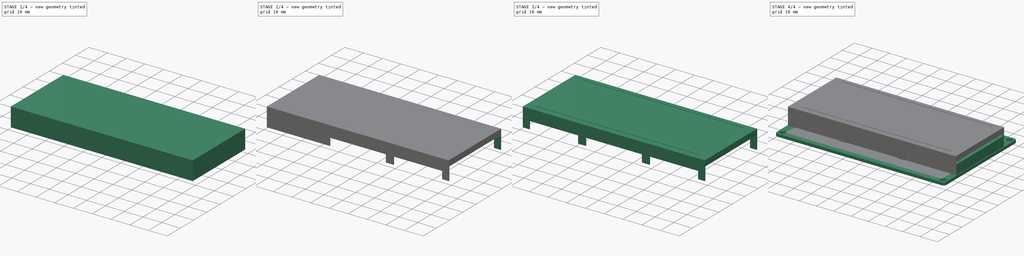
[diagram: build sequence overview — one tinted view per stage of 4, left to right]
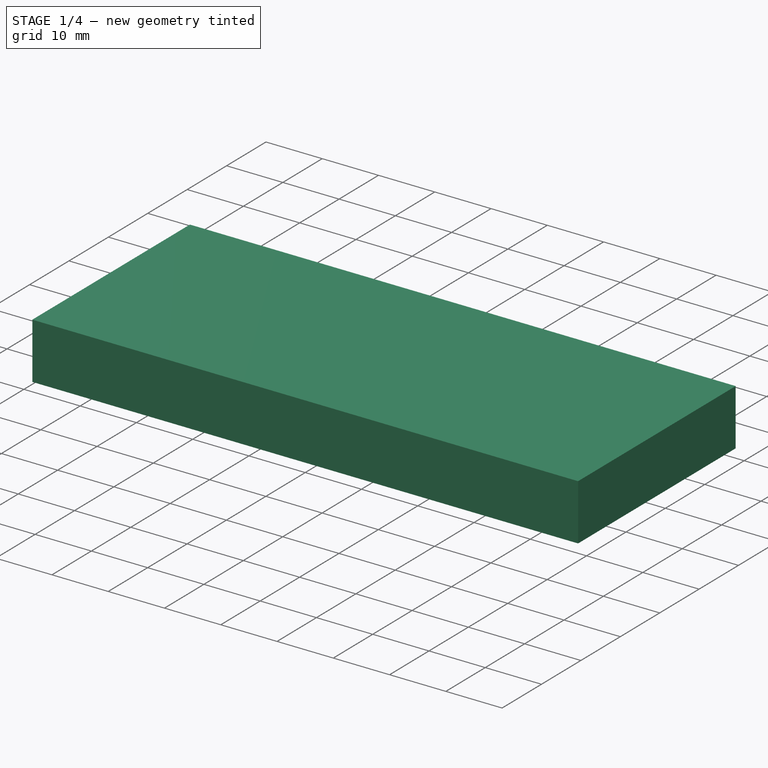
[diagram: stage 1 of 4 — iso view after this stage's code; geometry added in this stage tinted green]
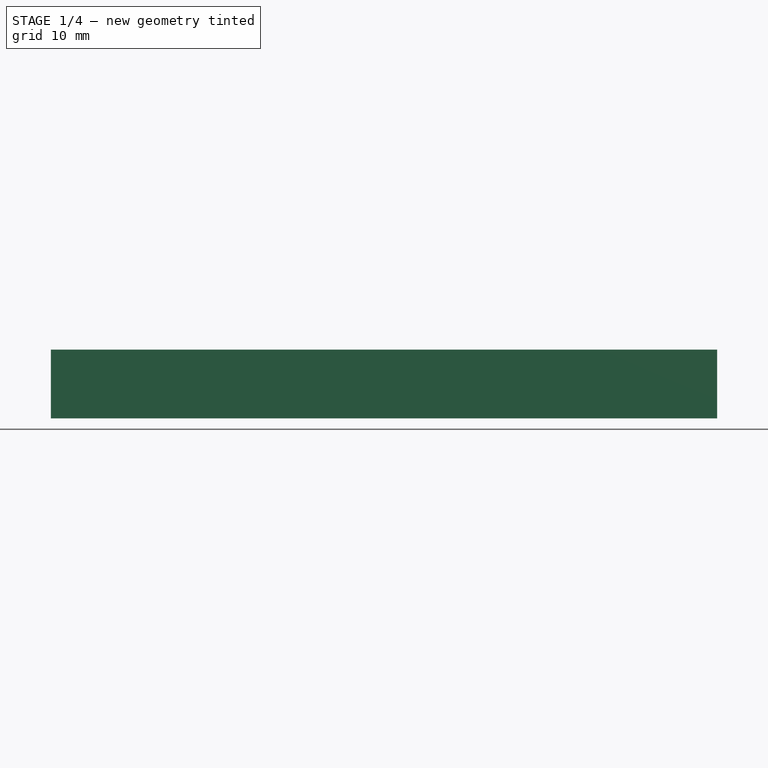
[diagram: stage 1 of 4 — front view after this stage's code; geometry added in this stage tinted green]
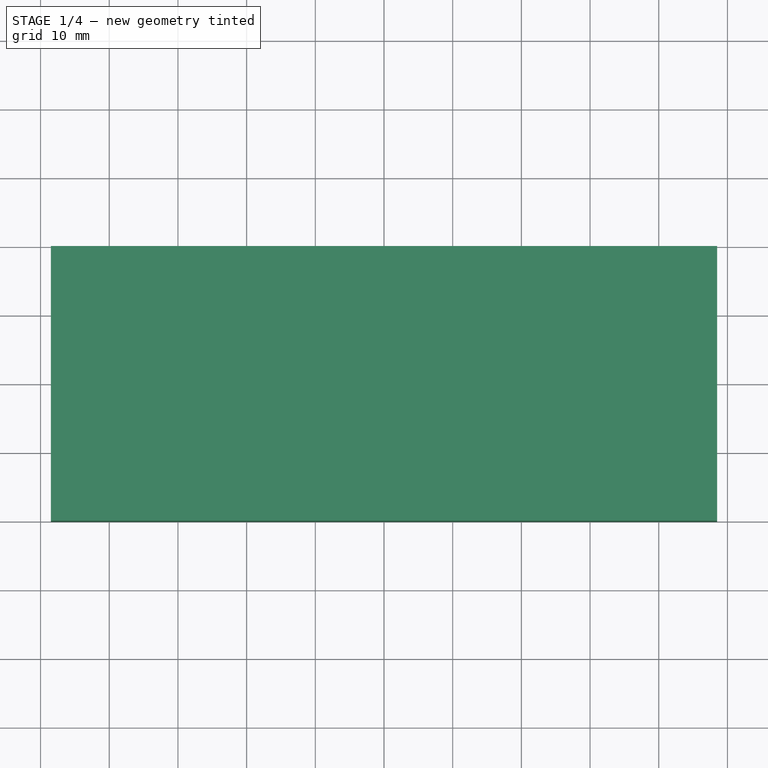
[diagram: stage 1 of 4 — top view after this stage's code; geometry added in this stage tinted green]
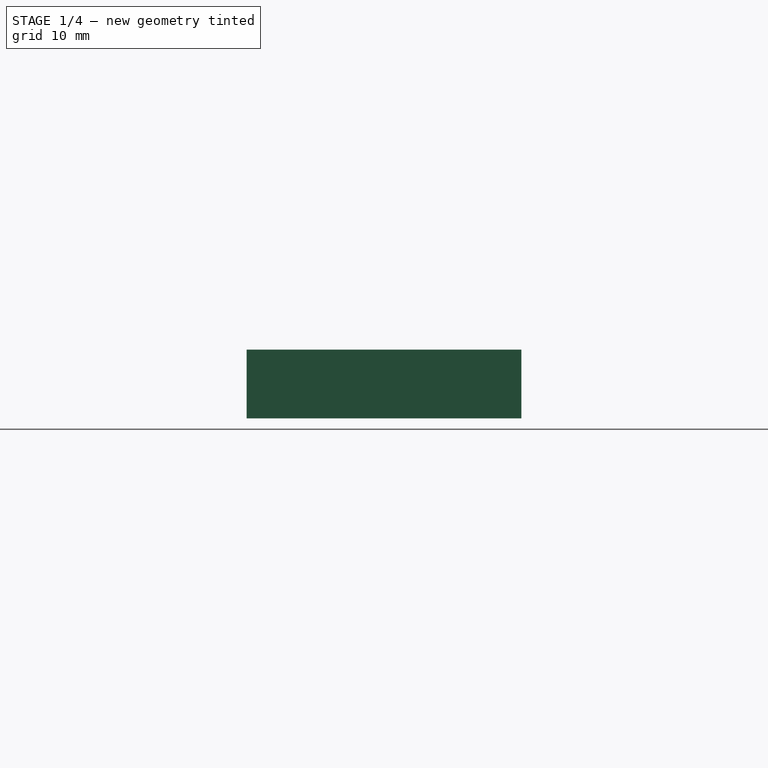
[diagram: stage 1 of 4 — right view after this stage's code; geometry added in this stage tinted green]
FCSTD DOCUMENT  (FreeCAD 1.0R39319 (Git))
Label: Display-LCD20x4
License: All rights reserved
LicenseURL: http://en.wikipedia.org/wiki/All_rights_reserved
objects: Sketcher::SketchObject×5, PartDesign::Pad×4, PartDesign::Body×4, PartDesign::SubtractiveBox×4, PartDesign::Fillet×2, PartDesign::Pocket×1, PartDesign::Mirrored×1
note: 49 computed .brp shape members not serialized (recipe doc carries the construction recipe); baked Part::Feature solids carry a one-line shape summary decoded from their .brp

FEATURE [PartDesign::Body] Body001
  AllowCompound = false
  Group = -> [Sketch002,Pad001]
  Origin = -> Origin001
  Tip = -> Pad001
FEATURE [Sketcher::SketchObject] Sketch003
  ArcFitTolerance = 0
  AttachmentSupport = -> [XY_Plane002]
  FullyConstrained = true
  MakeInternals = false
  MapMode = 5
  sketch-geometry (4):
    g0: LineSegment StartX=-48.5 StartY=20 StartZ=0 EndX=48.5 EndY=20 EndZ=0
    g1: LineSegment StartX=48.5 StartY=20 StartZ=0 EndX=48.5 EndY=-20 EndZ=0
    g2: LineSegment StartX=48.5 StartY=-20 StartZ=0 EndX=-48.5 EndY=-20 EndZ=0
    g3: LineSegment StartX=-48.5 StartY=-20 StartZ=0 EndX=-48.5 EndY=20 EndZ=0
  constraints (10):
    c: Coincident(g0,g1)
    c: Coincident(g1,g2)
    c: Coincident(g2,g3)
    c: Coincident(g3,g0)
    c: Horizontal(g2)
    c: Vertical(g3)
    c: DistanceY(g1,g1) = 40
    c: Symmetric(g0,g1,g-1)
    c: Symmetric(g0,g0,g-2)
    c: DistanceX(g2,g2) = 97
FEATURE [PartDesign::Pad] Pad002
  AllowMultiFace = false
  Direction = (0,0,1)
  Length = 10
  Length2 = 100
  Profile = -> Sketch003
  Suppressed = false
  Type = 0
FEATURE [PartDesign::Body] Body002
  AllowCompound = false
  Group = -> [Sketch003,Pad002,Box,Box001,Box002,Box003,Sketch004,Pocket,Mirrored]
  Origin = -> Origin002
  Tip = -> Mirrored
FEATURE [Sketcher::SketchObject] Sketch005
  ArcFitTolerance = 0
  AttachmentSupport = -> [XY_Plane003]
  FullyConstrained = true
  MakeInternals = false
  MapMode = 5
  sketch-geometry (4):
    g0: LineSegment StartX=-40 StartY=13 StartZ=0 EndX=40 EndY=13 EndZ=0
    g1: LineSegment StartX=40 StartY=13 StartZ=0 EndX=40 EndY=-13 EndZ=0
    g2: LineSegment StartX=40 StartY=-13 StartZ=0 EndX=-40 EndY=-13 EndZ=0
    g3: LineSegment StartX=-40 StartY=-13 StartZ=0 EndX=-40 EndY=13 EndZ=0
  constraints (10):
    c: Coincident(g0,g1)
    c: Coincident(g1,g2)
    c: Coincident(g2,g3)
    c: Coincident(g3,g0)
    c: Horizontal(g2)
    c: Vertical(g1)
    c: Symmetric(g0,g0,g-2)
    c: Symmetric(g0,g2,g-1)
    c: DistanceY(g1,g1) = 26
    c: DistanceX(g0,g0) = 80
FEATURE [PartDesign::Pad] Pad003
  AllowMultiFace = false
  Direction = (0,0,1)
  Length = 1
  Length2 = 100
  Profile = -> Sketch005
  Suppressed = false
  Type = 0
FEATURE [PartDesign::Fillet] Fillet001
  Base = -> Pad003 [Edge2,Edge5,Edge1,Edge8]
  BaseFeature = -> Pad003
  Radius = 2
  Refine = true
  SupportTransform = false
  Suppressed = false
  UseAllEdges = false
FEATURE [PartDesign::Body] Body003
  AllowCompound = false
  Group = -> [Sketch005,Pad003,Fillet001]
  Origin = -> Origin003
  Placement = pos=(0,0,9.5) rot=(0,0,1;0rad)
  Tip = -> Fillet001
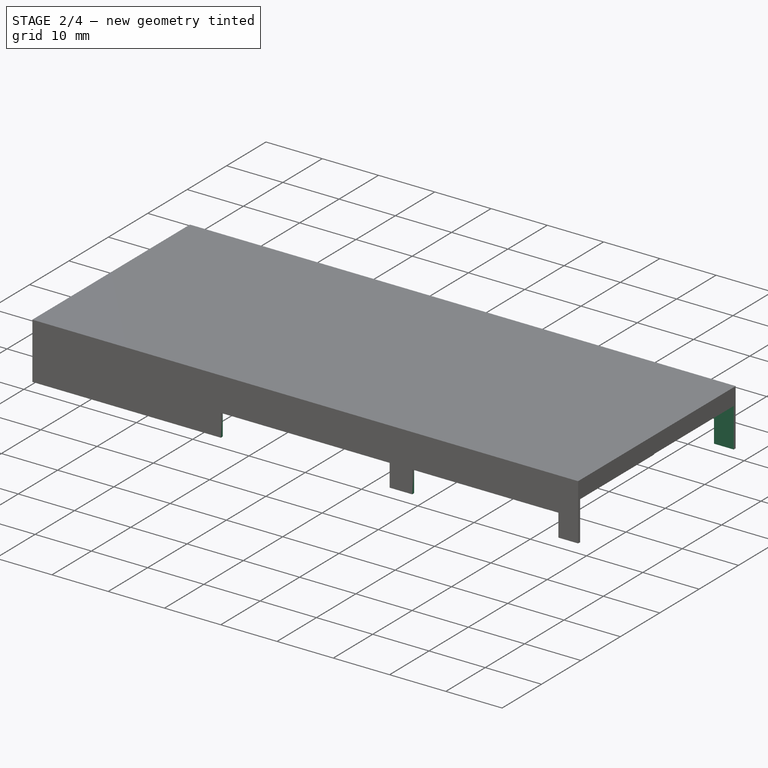
[diagram: stage 2 of 4 — iso view after this stage's code; geometry added in this stage tinted green]
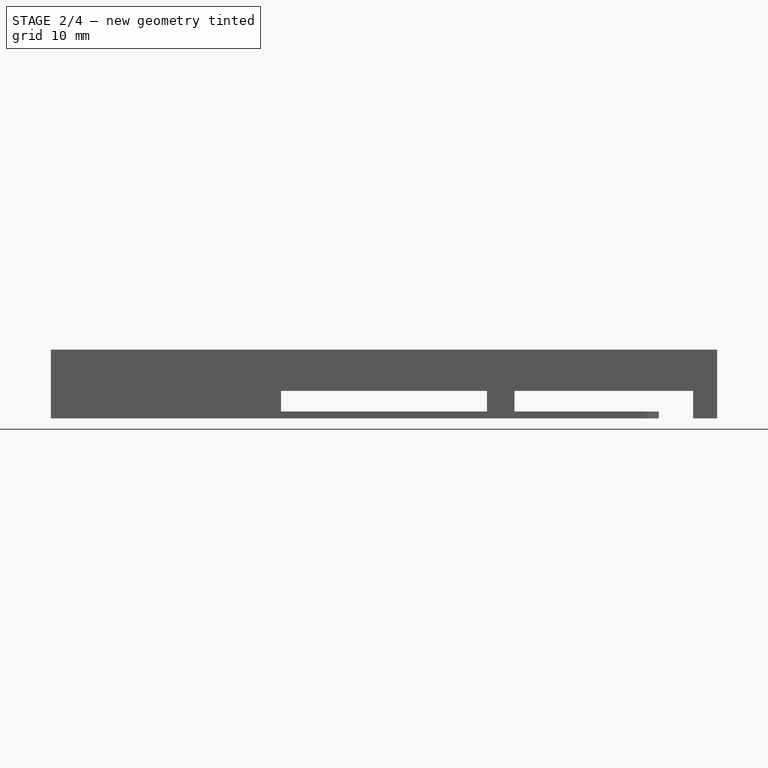
[diagram: stage 2 of 4 — front view after this stage's code; geometry added in this stage tinted green]
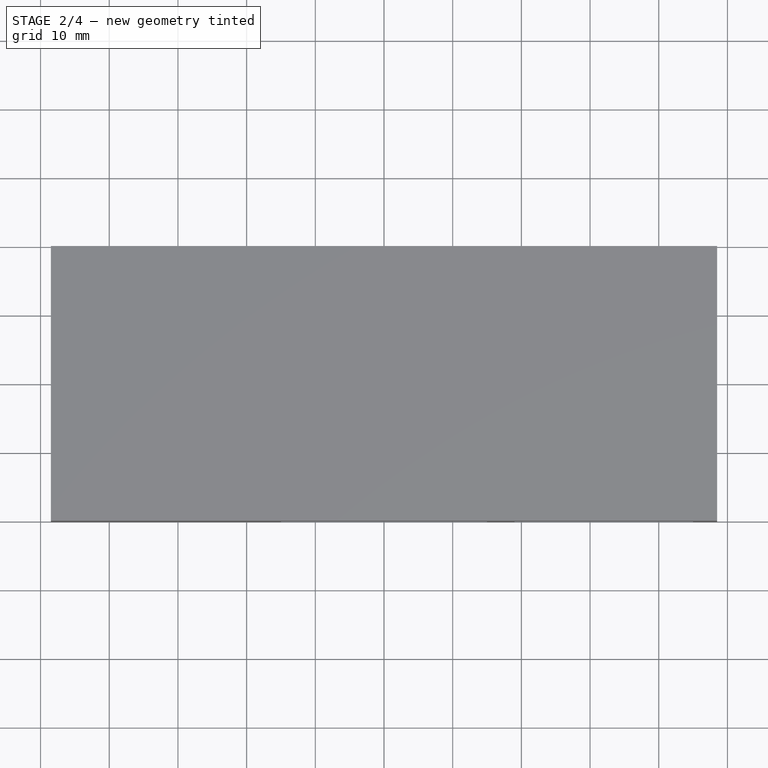
[diagram: stage 2 of 4 — top view after this stage's code; geometry added in this stage tinted green]
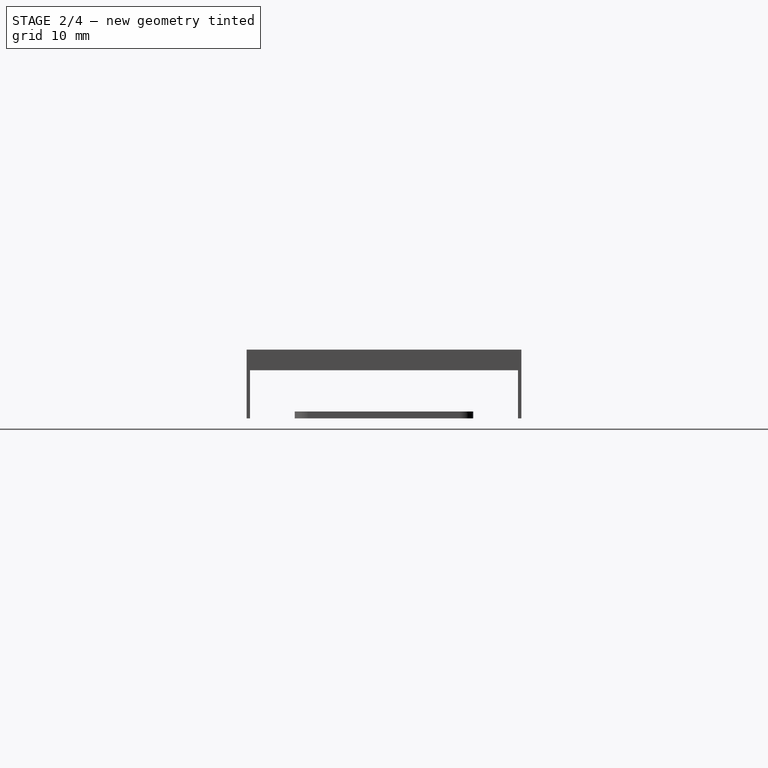
[diagram: stage 2 of 4 — right view after this stage's code; geometry added in this stage tinted green]
FEATURE [PartDesign::SubtractiveBox] Box
  AttacherType = Attacher::AttachEngine3D
  AttachmentOffset = pos=(-19.5,0,-50) rot=(0,0,1;0rad)
  AttachmentSupport = -> [YZ_Plane002]
  BaseFeature = -> Pad002
  Height = 100
  Length = 39
  MapMode = 5
  Placement = pos=(-50,-19.5,0) rot=(0.57735,0.57735,0.57735;2.0944rad)
  Suppressed = false
  Width = 7
FEATURE [PartDesign::SubtractiveBox] Box001
  AttacherType = Attacher::AttachEngine3D
  AttachmentOffset = pos=(19,0,-22) rot=(0,0,1;0rad)
  AttachmentSupport = -> [XZ_Plane002]
  BaseFeature = -> Box
  Height = 44
  Length = 26
  MapMode = 5
  Placement = pos=(19,22,-4.9e-15) rot=(1,0,0;1.5708rad)
  Suppressed = false
  Width = 4
FEATURE [PartDesign::SubtractiveBox] Box002
  AttacherType = Attacher::AttachEngine3D
  AttachmentOffset = pos=(-15,0,-22) rot=(0,0,1;0rad)
  AttachmentSupport = -> [XZ_Plane002]
  BaseFeature = -> Box001
  Height = 44
  Length = 30
  MapMode = 5
  Placement = pos=(-15,22,-4.9e-15) rot=(1,0,0;1.5708rad)
  Suppressed = false
  Width = 4
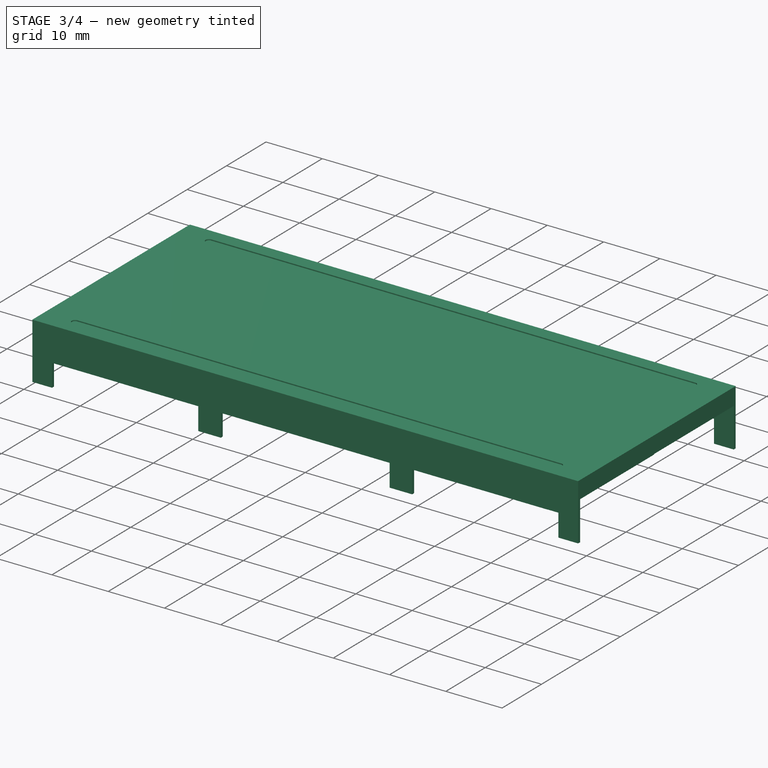
[diagram: stage 3 of 4 — iso view after this stage's code; geometry added in this stage tinted green]
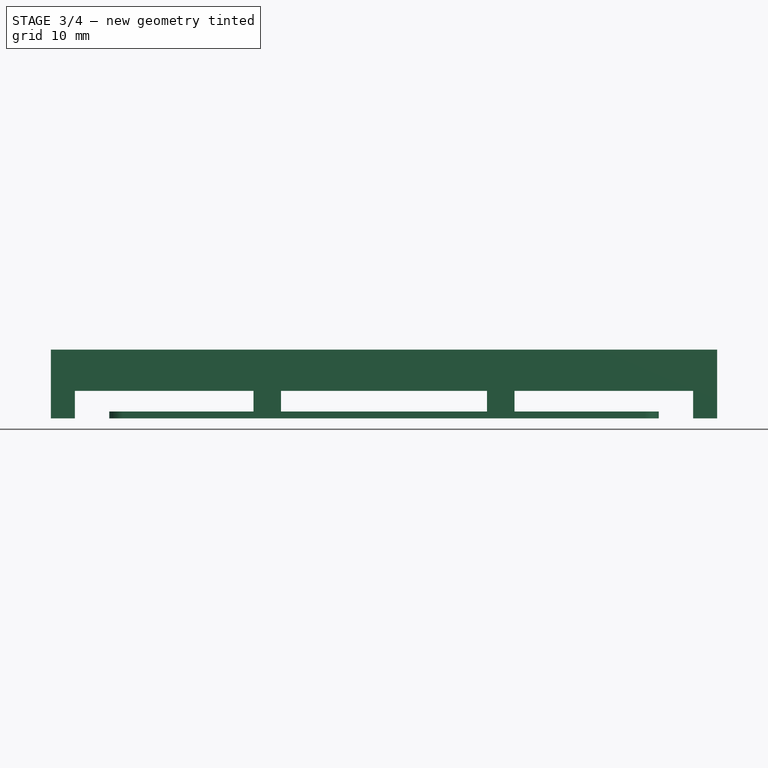
[diagram: stage 3 of 4 — front view after this stage's code; geometry added in this stage tinted green]
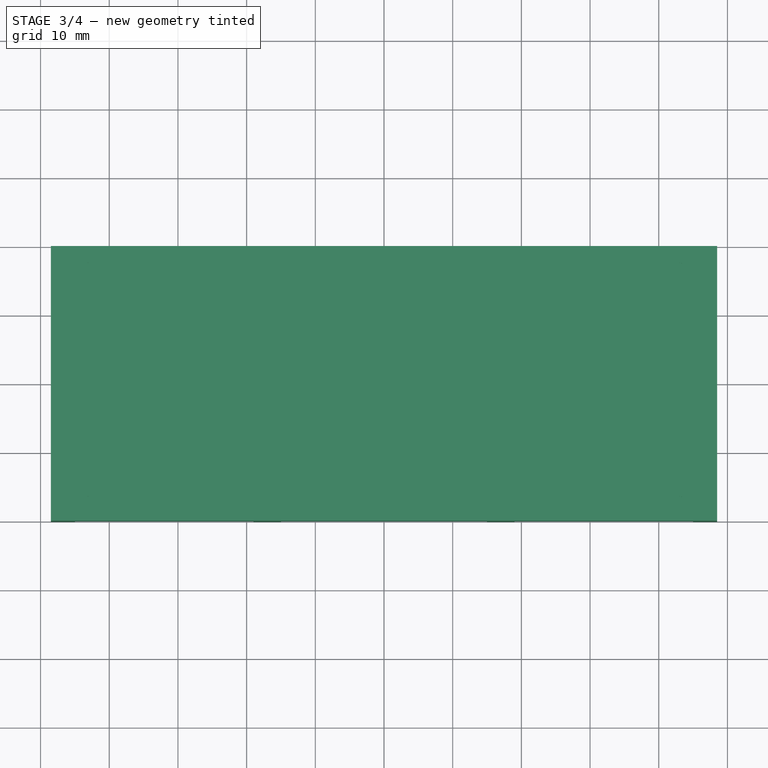
[diagram: stage 3 of 4 — top view after this stage's code; geometry added in this stage tinted green]
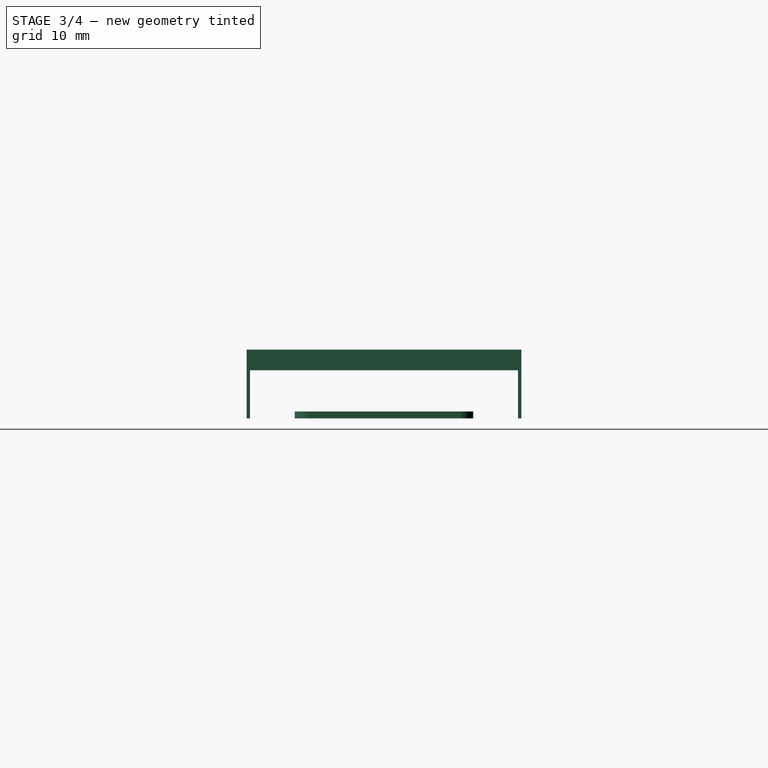
[diagram: stage 3 of 4 — right view after this stage's code; geometry added in this stage tinted green]
FEATURE [PartDesign::SubtractiveBox] Box003
  AttacherType = Attacher::AttachEngine3D
  AttachmentOffset = pos=(-45,0,-22) rot=(0,0,1;0rad)
  AttachmentSupport = -> [XZ_Plane002]
  BaseFeature = -> Box002
  Height = 44
  Length = 26
  MapMode = 5
  Placement = pos=(-45,22,-4.9e-15) rot=(1,0,0;1.5708rad)
  Suppressed = false
  Width = 4
FEATURE [Sketcher::SketchObject] Sketch004
  ArcFitTolerance = 0
  AttachmentSupport = -> [Pad002]
  FullyConstrained = true
  MakeInternals = false
  MapMode = 5
  Placement = pos=(0,0,10) rot=(0,0,1;0rad)
  sketch-geometry (4):
    g0: ArcOfCircle CenterX=-43 CenterY=17 CenterZ=0 NormalX=0 NormalY=0 NormalZ=1 AngleXU=0 Radius=0.6 StartAngle=1.5708 EndAngle=4.71239
    g1: ArcOfCircle CenterX=43 CenterY=17 CenterZ=0 NormalX=0 NormalY=0 NormalZ=1 AngleXU=0 Radius=0.6 StartAngle=4.71239 EndAngle=7.85398
    g2: LineSegment StartX=-43 StartY=16.4 StartZ=0 EndX=43 EndY=16.4 EndZ=0
    g3: LineSegment StartX=-43 StartY=17.6 StartZ=0 EndX=43 EndY=17.6 EndZ=0
  constraints (9):
    c: Tangent(g0,g3) = 1.5708
    c: Tangent(g0,g2) = -1.5708
    c: Tangent(g2,g1) = -1.5708
    c: Tangent(g3,g1) = 1.5708
    c: Horizontal(g2)
    c: Symmetric(g0,g1,g-2)
    c: Radius(g1) = 0.6
    c: DistanceX(g0,g1) = 86
    c: DistanceY(g-1,g1) = 17
FEATURE [PartDesign::Pocket] Pocket
  AllowMultiFace = false
  BaseFeature = -> Box003
  Direction = (0,0,-1)
  Length = 0.2
  Length2 = 100
  Placement = pos=(-45,22,-4.9e-15) rot=(1,0,0;1.5708rad)
  Profile = -> Sketch004
  Suppressed = false
  Type = 0
FEATURE [PartDesign::Mirrored] Mirrored
  BaseFeature = -> Pocket
  MirrorPlane = -> XZ_Plane002
  Originals = -> [Pocket]
  Placement = pos=(-45,22,-4.9e-15) rot=(1,0,0;1.5708rad)
  Suppressed = false
  TransformMode = 0
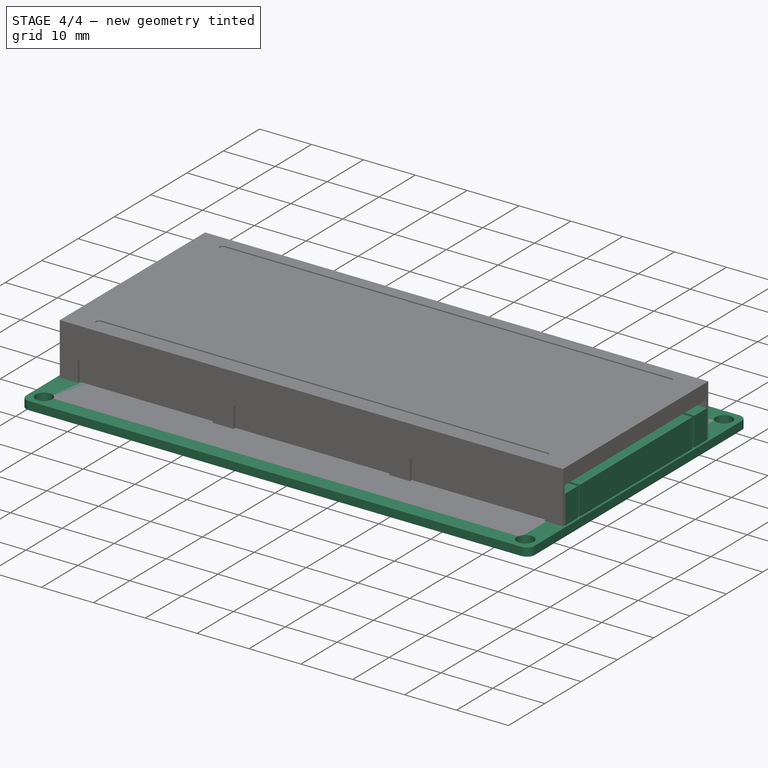
[diagram: stage 4 of 4 — iso view after this stage's code; geometry added in this stage tinted green]
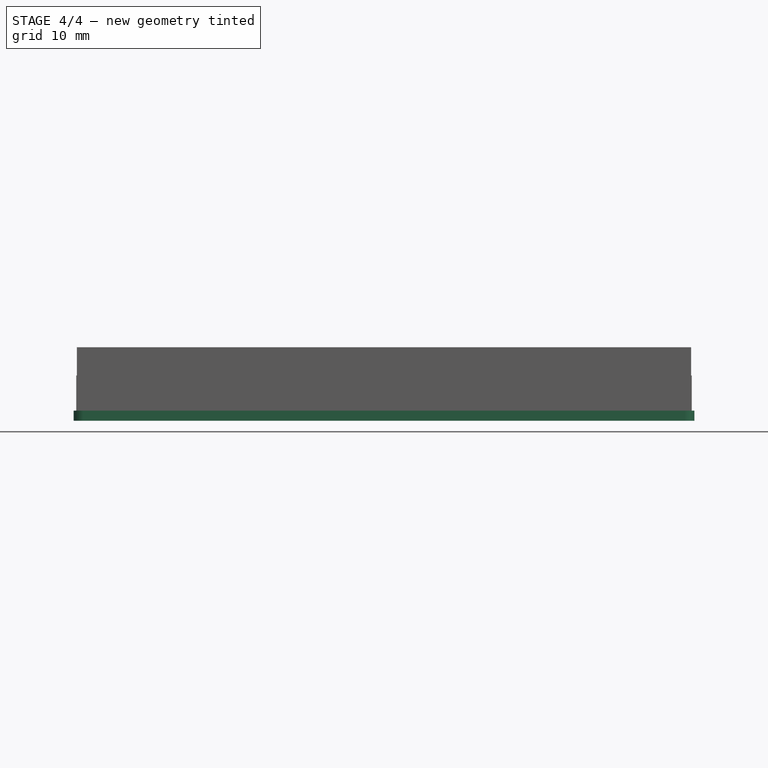
[diagram: stage 4 of 4 — front view after this stage's code; geometry added in this stage tinted green]
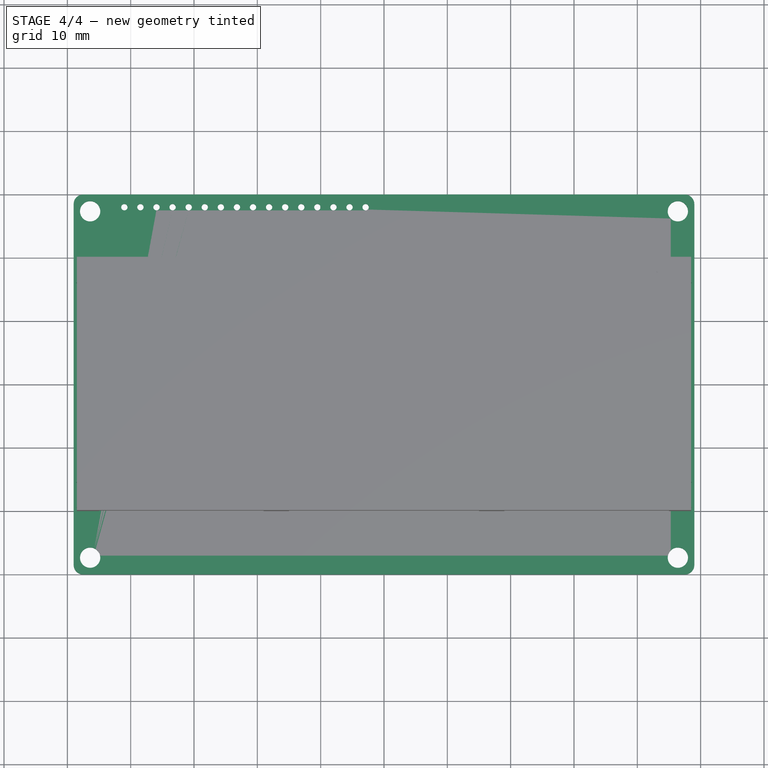
[diagram: stage 4 of 4 — top view after this stage's code; geometry added in this stage tinted green]
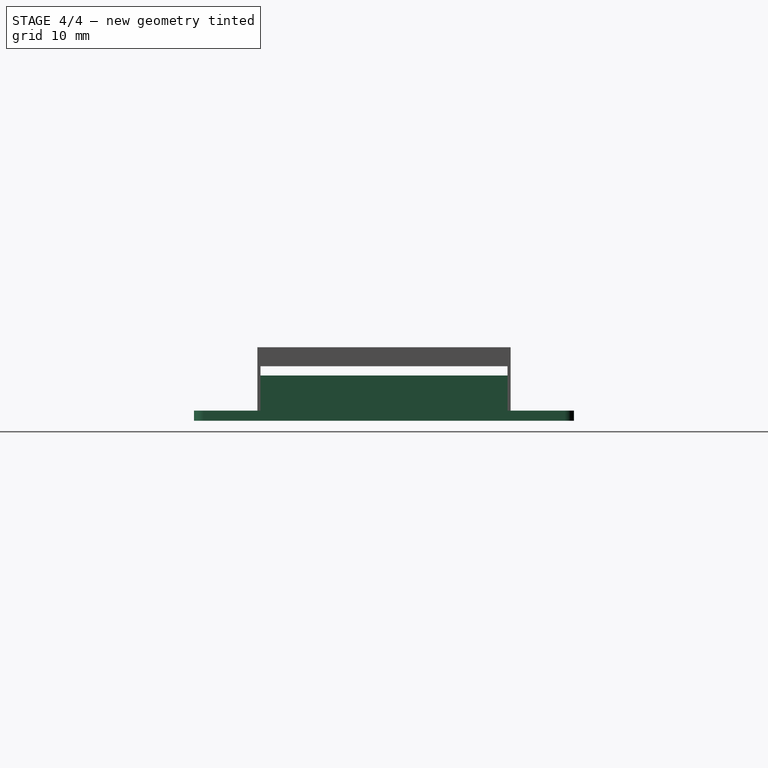
[diagram: stage 4 of 4 — right view after this stage's code; geometry added in this stage tinted green]
FEATURE [Sketcher::SketchObject] Sketch
  ArcFitTolerance = 0
  AttachmentSupport = -> [XY_Plane]
  FullyConstrained = true
  MakeInternals = false
  MapMode = 5
  sketch-geometry (24):
    g0: LineSegment StartX=-49 StartY=30 StartZ=0 EndX=49 EndY=30 EndZ=0
    g1: LineSegment StartX=49 StartY=30 StartZ=0 EndX=49 EndY=-30 EndZ=0
    g2: LineSegment StartX=49 StartY=-30 StartZ=0 EndX=-49 EndY=-30 EndZ=0
    g3: LineSegment StartX=-49 StartY=-30 StartZ=0 EndX=-49 EndY=30 EndZ=0
    g4: Circle CenterX=-46.4 CenterY=27.35 CenterZ=0 NormalX=0 NormalY=0 NormalZ=1 AngleXU=0 Radius=1.6
    g5: Circle CenterX=46.4 CenterY=27.35 CenterZ=0 NormalX=0 NormalY=0 NormalZ=1 AngleXU=0 Radius=1.6
    g6: Circle CenterX=46.4 CenterY=-27.35 CenterZ=0 NormalX=0 NormalY=0 NormalZ=1 AngleXU=0 Radius=1.6
    g7: Circle CenterX=-46.4 CenterY=-27.35 CenterZ=0 NormalX=0 NormalY=0 NormalZ=1 AngleXU=0 Radius=1.6
    g8: Circle CenterX=-41 CenterY=28 CenterZ=0 NormalX=0 NormalY=0 NormalZ=1 AngleXU=0 Radius=0.5
    g9: Circle CenterX=-38.46 CenterY=28 CenterZ=0 NormalX=0 NormalY=0 NormalZ=1 AngleXU=0 Radius=0.5
    g10: Circle CenterX=-35.92 CenterY=28 CenterZ=0 NormalX=0 NormalY=0 NormalZ=1 AngleXU=0 Radius=0.5
    g11: Circle CenterX=-33.38 CenterY=28 CenterZ=0 NormalX=0 NormalY=0 NormalZ=1 AngleXU=0 Radius=0.5
    g12: Circle CenterX=-30.84 CenterY=28 CenterZ=0 NormalX=0 NormalY=0 NormalZ=1 AngleXU=0 Radius=0.5
    g13: Circle CenterX=-28.3 CenterY=28 CenterZ=0 NormalX=0 NormalY=0 NormalZ=1 AngleXU=0 Radius=0.5
    g14: Circle CenterX=-25.76 CenterY=28 CenterZ=0 NormalX=0 NormalY=0 NormalZ=1 AngleXU=0 Radius=0.5
    g15: Circle CenterX=-20.68 CenterY=28 CenterZ=0 NormalX=0 NormalY=0 NormalZ=1 AngleXU=0 Radius=0.5
    g16: Circle CenterX=-23.22 CenterY=28 CenterZ=0 NormalX=0 NormalY=0 NormalZ=1 AngleXU=0 Radius=0.5
    g17: Circle CenterX=-18.14 CenterY=28 CenterZ=0 NormalX=0 NormalY=0 NormalZ=1 AngleXU=0 Radius=0.5
    g18: Circle CenterX=-15.6 CenterY=28 CenterZ=0 NormalX=0 NormalY=0 NormalZ=1 AngleXU=0 Radius=0.5
    g19: Circle CenterX=-13.06 CenterY=28 CenterZ=0 NormalX=0 NormalY=0 NormalZ=1 AngleXU=0 Radius=0.5
    g20: Circle CenterX=-10.52 CenterY=28 CenterZ=0 NormalX=0 NormalY=0 NormalZ=1 AngleXU=0 Radius=0.5
    g21: Circle CenterX=-7.98 CenterY=28 CenterZ=0 NormalX=0 NormalY=0 NormalZ=1 AngleXU=0 Radius=0.5
    g22: Circle CenterX=-5.44 CenterY=28 CenterZ=0 NormalX=0 NormalY=0 NormalZ=1 AngleXU=0 Radius=0.5
    g23: Circle CenterX=-2.9 CenterY=28 CenterZ=0 NormalX=0 NormalY=0 NormalZ=1 AngleXU=0 Radius=0.5
  constraints (68):
    c: Coincident(g0,g1)
    c: Coincident(g1,g2)
    c: Coincident(g2,g3)
    c: Coincident(g3,g0)
    c: Horizontal(g2)
    c: Vertical(g1)
    c: Symmetric(g0,g0,g-2)
    c: Symmetric(g0,g2,g-1)
    c: DistanceX(g2,g2) = 98
    c: DistanceY(g1,g1) = 60
    c: Symmetric(g7,g4,g-1)
    c: Symmetric(g5,g4,g-2)
    c: Equal(g6,g5)
    c: Equal(g5,g4)
    c: Equal(g4,g7)
    c: Horizontal(g6,g7)
    c: Vertical(g6,g5)
    c: Diameter(g7) = 3.2
    c: DistanceX(g7,g6) = 92.8
    c: DistanceY(g6,g5) = 54.7
    c: Diameter(g8) = 1
    c: Equal(g8,g9) = 1
    c: Equal(g8,g10) = 1
    c: Equal(g10,g11) = 1
    c: Equal(g8,g12) = 1
    c: Equal(g12,g13) = 1
    c: Equal(g12,g14) = 1
    c: Equal(g14,g15) = 1
    c: Equal(g8,g16) = 1
    c: Equal(g16,g17) = 1
    c: Equal(g16,g18) = 1
    c: Equal(g18,g19) = 1
    c: Equal(g16,g20) = 1
    c: Equal(g20,g21) = 1
    c: Equal(g20,g22) = 1
    c: Equal(g22,g23) = 1
    c: Horizontal(g8,g9)
    c: Horizontal(g9,g10)
    c: Horizontal(g10,g11)
    c: Horizontal(g11,g12)
    c: Horizontal(g12,g13)
    c: Horizontal(g13,g14)
    c: Horizontal(g14,g16)
    c: Horizontal(g16,g15)
    c: Horizontal(g15,g17)
    c: Horizontal(g17,g18)
    c: Horizontal(g18,g19)
    c: Horizontal(g19,g20)
    c: Horizontal(g20,g21)
    c: Horizontal(g21,g22)
    c: Horizontal(g22,g23)
    c: DistanceX(g10,g11) = 2.54
    c: DistanceX(g11,g12) = 2.54
    c: DistanceX(g12,g13) = 2.54
    c: DistanceX(g13,g14) = 2.54
    c: DistanceX(g9,g10) = 2.54
    c: DistanceX(g8,g9) = 2.54
    c: DistanceX(g14,g16) = 2.54
    c: DistanceX(g16,g15) = 2.54
    c: DistanceX(g22,g23) = 2.54
    c: DistanceX(g21,g22) = 2.54
    c: DistanceX(g20,g21) = 2.54
    c: DistanceX(g19,g20) = 2.54
    c: DistanceX(g18,g19) = 2.54
    c: DistanceX(g17,g18) = 2.54
    c: DistanceX(g15,g17) = 2.54
    c: DistanceX(g0,g8) = 8
    c: DistanceY(g8,g0) = 2
FEATURE [PartDesign::Pad] Pad
  AllowMultiFace = false
  Direction = (0,0,1)
  Length = 1.6
  Length2 = 100
  Profile = -> Sketch
  Reversed = true
  Suppressed = false
  Type = 0
FEATURE [PartDesign::Fillet] Fillet
  Base = -> Pad [Edge5,Edge8,Edge2,Edge1]
  BaseFeature = -> Pad
  Radius = 1.5
  Refine = true
  SupportTransform = false
  Suppressed = false
  UseAllEdges = false
FEATURE [PartDesign::Body] Body
  AllowCompound = false
  Group = -> [Sketch,Pad,Fillet]
  Origin = -> Origin
  Tip = -> Fillet
FEATURE [Sketcher::SketchObject] Sketch002
  ArcFitTolerance = 0
  AttachmentSupport = -> [XY_Plane001]
  FullyConstrained = true
  MakeInternals = false
  MapMode = 5
  sketch-geometry (20):
    g0: LineSegment StartX=-48.6 StartY=15.5 StartZ=0 EndX=-5 EndY=15.5 EndZ=0
    g1: LineSegment StartX=48.6 StartY=15.5 StartZ=0 EndX=48.6 EndY=-15.5 EndZ=0
    g2: LineSegment StartX=48.6 StartY=-15.5 StartZ=0 EndX=5 EndY=-15.5 EndZ=0
    g3: LineSegment StartX=-48.6 StartY=-15.5 StartZ=0 EndX=-48.6 EndY=15.5 EndZ=0
    g4: LineSegment StartX=-48.6 StartY=19.5 StartZ=0 EndX=48.6 EndY=19.5 EndZ=0
    g5: LineSegment StartX=48.6 StartY=19.5 StartZ=0 EndX=48.6 EndY=16 EndZ=0
    g6: LineSegment StartX=48.6 StartY=16 StartZ=0 EndX=5 EndY=16 EndZ=0
    g7: LineSegment StartX=-48.6 StartY=16 StartZ=0 EndX=-48.6 EndY=19.5 EndZ=0
    g8: LineSegment StartX=-48.6 StartY=-16 StartZ=0 EndX=-5 EndY=-16 EndZ=0
    g9: LineSegment StartX=48.6 StartY=-16 StartZ=0 EndX=48.6 EndY=-19.5 EndZ=0
    g10: LineSegment StartX=48.6 StartY=-19.5 StartZ=0 EndX=-48.6 EndY=-19.5 EndZ=0
    g11: LineSegment StartX=-48.6 StartY=-19.5 StartZ=0 EndX=-48.6 EndY=-16 EndZ=0
    g12: LineSegment StartX=-5 StartY=16 StartZ=0 EndX=-5 EndY=15.5 EndZ=0
    g13: LineSegment StartX=5 StartY=16 StartZ=0 EndX=5 EndY=15.5 EndZ=0
    g14: LineSegment StartX=-5 StartY=-16 StartZ=0 EndX=-5 EndY=-15.5 EndZ=0
    g15: LineSegment StartX=5 StartY=-15.5 StartZ=0 EndX=5 EndY=-16 EndZ=0
    g16: LineSegment StartX=-5 StartY=16 StartZ=0 EndX=-48.6 EndY=16 EndZ=0
    g17: LineSegment StartX=5 StartY=15.5 StartZ=0 EndX=48.6 EndY=15.5 EndZ=0
    g18: LineSegment StartX=-5 StartY=-15.5 StartZ=0 EndX=-48.6 EndY=-15.5 EndZ=0
    g19: LineSegment StartX=5 StartY=-16 StartZ=0 EndX=48.6 EndY=-16 EndZ=0
  constraints (51):
    c: Coincident(g17,g1)
    c: Coincident(g1,g2)
    c: Coincident(g18,g3)
    c: Coincident(g3,g0)
    c: Horizontal(g2)
    c: Vertical(g3)
    c: DistanceY(g1,g1) = 31
    c: Symmetric(g17,g1,g-1)
    c: Coincident(g4,g5)
    c: Coincident(g5,g6)
    c: Coincident(g16,g7)
    c: Coincident(g7,g4)
    c: Vertical(g5)
    c: Vertical(g7)
    c: Coincident(g19,g9)
    c: Coincident(g9,g10)
    c: Coincident(g10,g11)
    c: Coincident(g11,g8)
    c: Horizontal(g8)
    c: Vertical(g9)
    c: Vertical(g11)
    c: Symmetric(g8,g16,g-1)
    c: Symmetric(g10,g9,g-2)
    c: Symmetric(g4,g4,g-2)
    c: Equal(g7,g11)
    c: DistanceY(g9,g9) = 3.5
    c: Vertical(g12)
    c: Vertical(g13)
    c: Vertical(g14)
    c: Vertical(g15)
    c: Vertical(g12,g14)
    c: Vertical(g15,g13)
    c: Coincident(g16,g12)
    c: Tangent(g6,g16)
    c: Coincident(g0,g12)
    c: Coincident(g17,g13)
    c: Tangent(g0,g17)
    c: Coincident(g2,g15)
    c: Coincident(g18,g14)
    c: Tangent(g2,g18)
    c: Coincident(g8,g14)
    c: Coincident(g19,g15)
    c: Tangent(g8,g19)
    c: Coincident(g13,g6)
    c: Symmetric(g6,g12,g-2)
    c: Horizontal(g0)
    c: DistanceY(g15,g15) = 0.5
    c: Vertical(g8,g3)
    c: Vertical(g1,g5)
    c: DistanceX(g10,g10) = 97.2
    c: DistanceX(g14,g2) = 10
FEATURE [PartDesign::Pad] Pad001
  AllowMultiFace = false
  Direction = (0,0,1)
  Length = 5.54
  Length2 = 100
  Profile = -> Sketch002
  Suppressed = false
  Type = 0
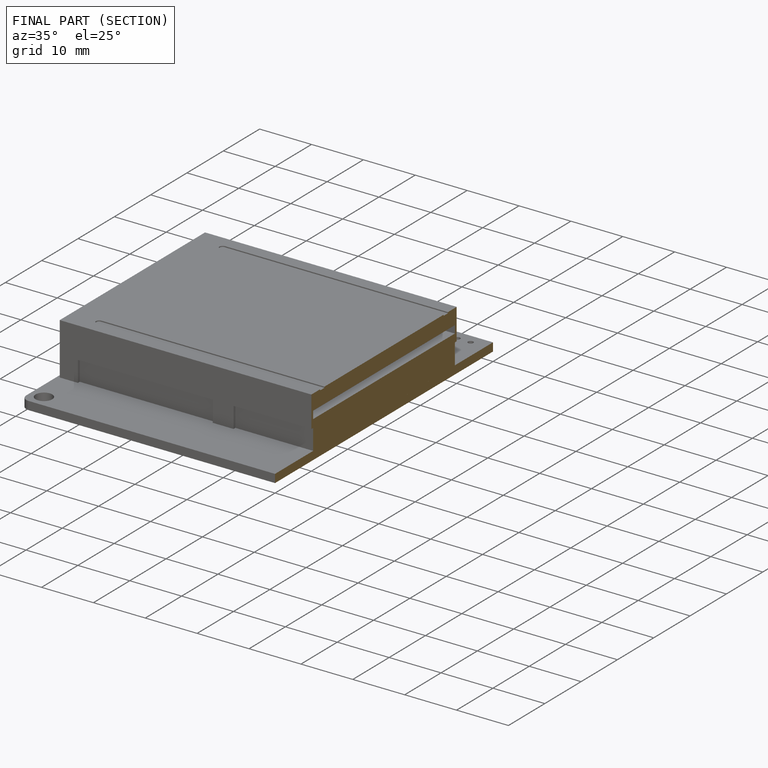
[diagram: finished part — half-section view (interior)]
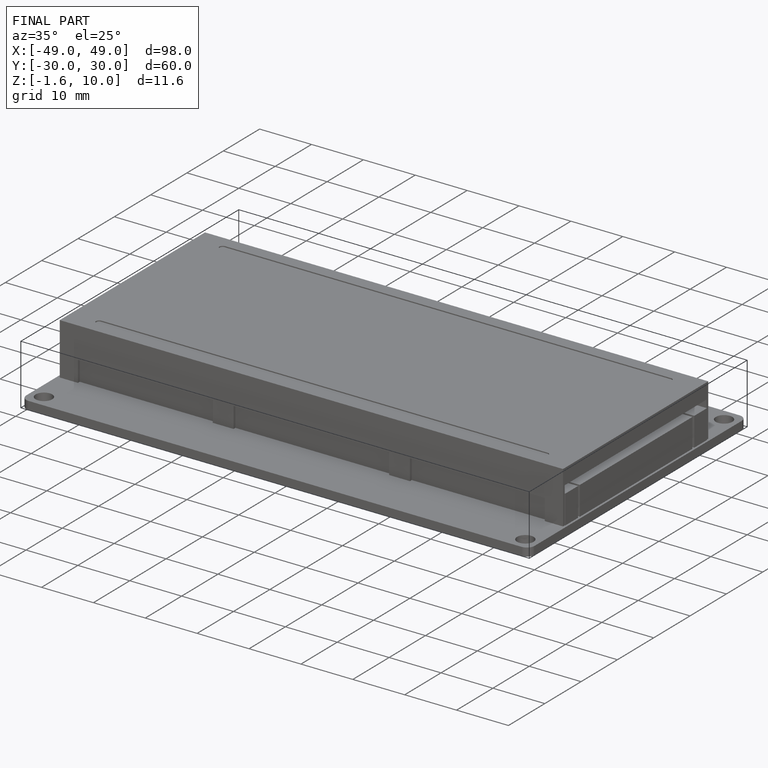
[diagram: finished part — iso view with bounding-box wireframe]
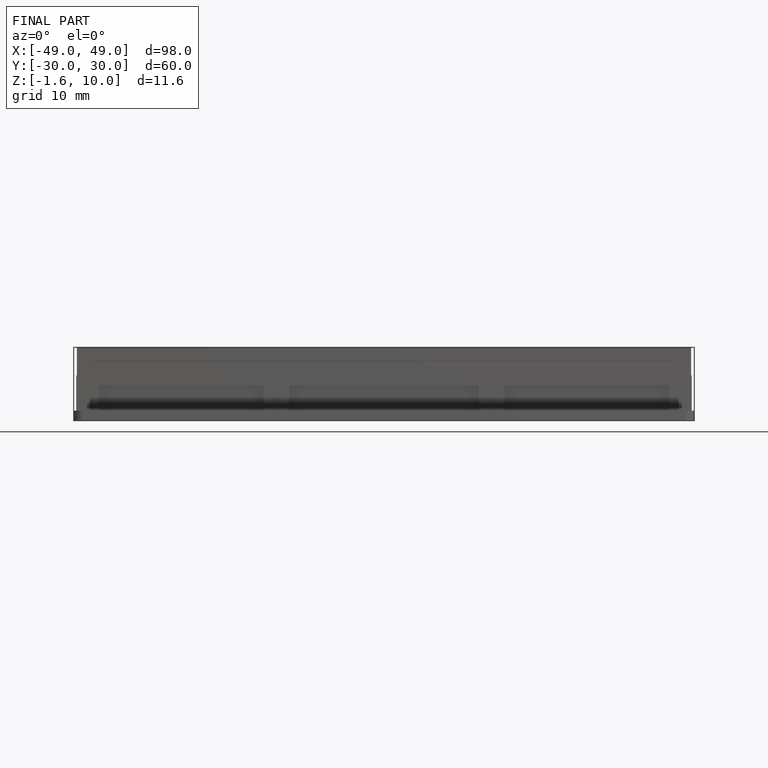
[diagram: finished part — front view with bounding-box wireframe]
